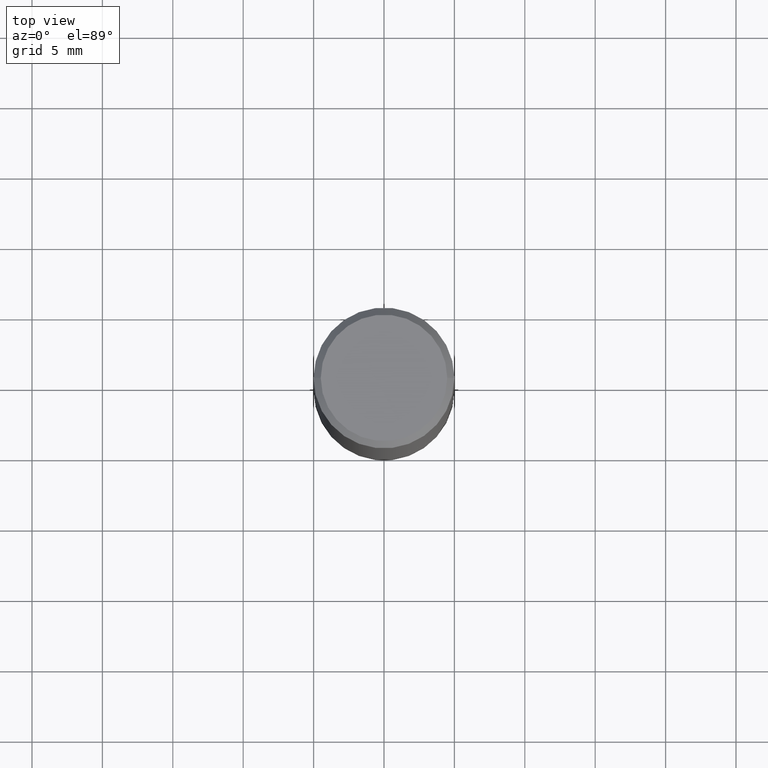
[diagram: clean part render]
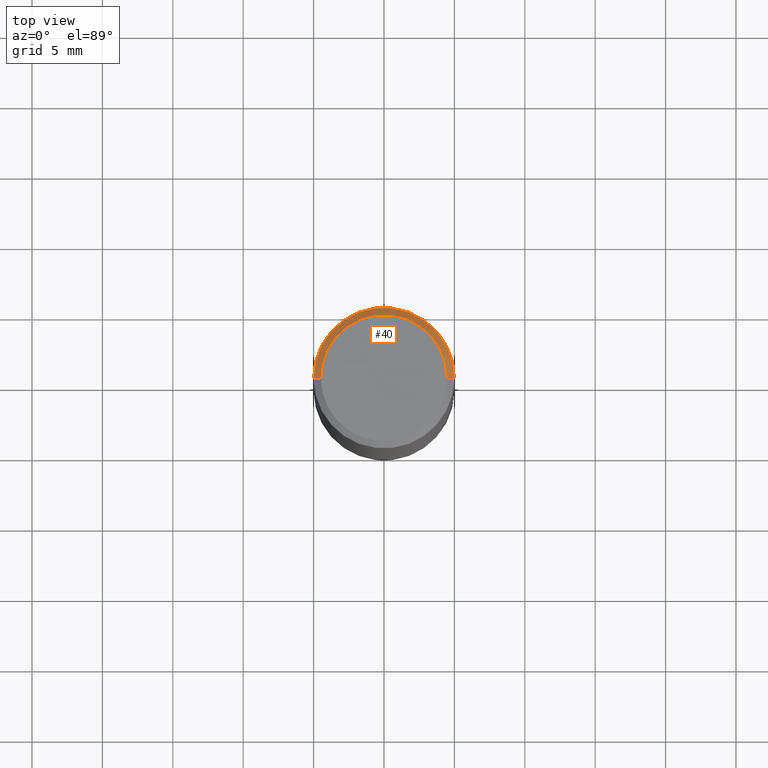
[diagram: same view with one face highlighted and labeled with its STEP entity id]
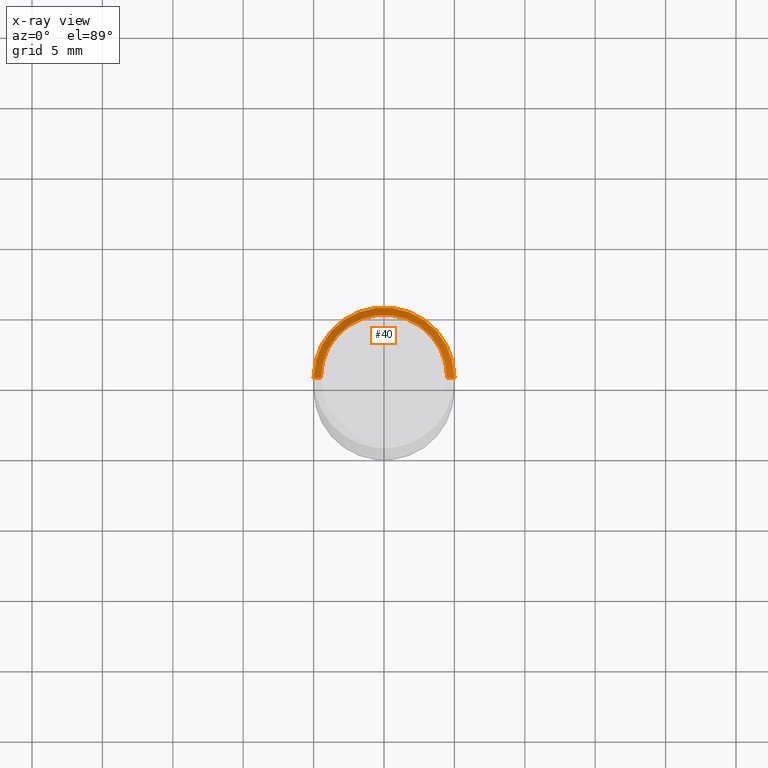
[diagram: x-ray of the same camera — body ghosted, the highlighted face saturated]
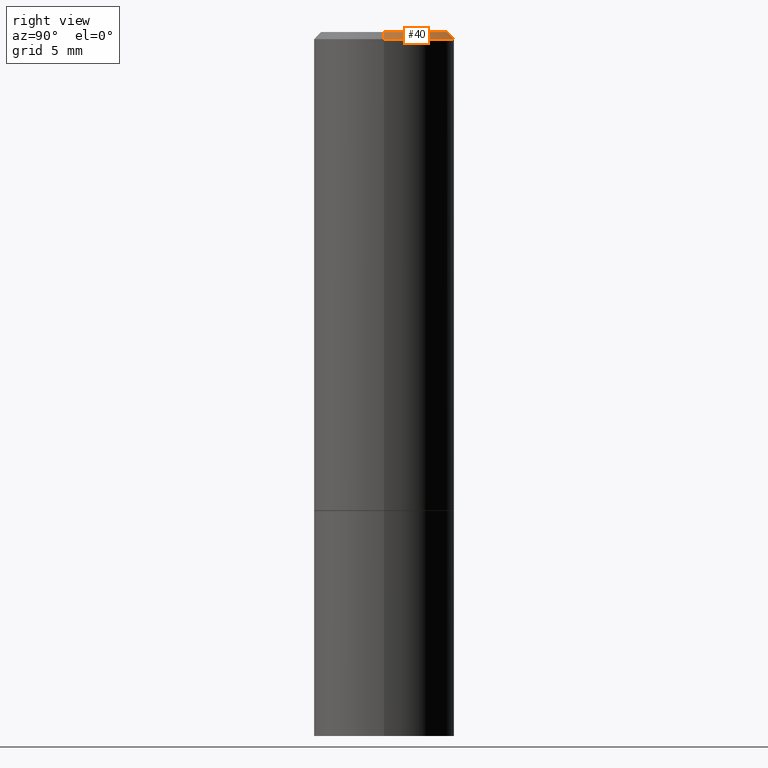
[diagram: same view with one face highlighted and labeled with its STEP entity id]
A machine part, top view. The second image highlights one B-rep face of the part: STEP entity #40.
The next image is the same camera in x-ray: the body ghosted, the highlighted face saturated — about 0% of this face is hidden behind the body in this view.
A second angle (right view) of the same face is appended — the face is thin or edge-on in the first view.
In plain terms, the highlighted conical surface has half-angle 45 deg.
Its self-contained STEP definition (entity closure, byte-faithful):
#7 = CARTESIAN_POINT ( 'NONE',  ( 0.1768499999999998407, -1.316798864272041155E-15, 8.922390245354091239E-30 ) ) ;
#9 = CIRCLE ( 'NONE', #241, 0.1968499999999998307 ) ;
#12 = CARTESIAN_POINT ( 'NONE',  ( 4.890937612370284544E-31, -6.982962677686307633E-17, -0.02000000000000004552 ) ) ;
#20 = EDGE_CURVE ( 'NONE', #359, #111, #204, .T. ) ;
#25 = ORIENTED_EDGE ( 'NONE', *, *, #51, .T. ) ;
#32 = ORIENTED_EDGE ( 'NONE', *, *, #91, .T. ) ;
#36 = AXIS2_PLACEMENT_3D ( 'NONE', #59, #296, #205 ) ;
#40 = ADVANCED_FACE ( 'NONE', ( #170 ), #227, .T. ) ;
#45 = VECTOR ( 'NONE', #139, 39.37007874015748143 ) ;
#51 = EDGE_CURVE ( 'NONE', #86, #305, #287, .T. ) ;
#53 = CARTESIAN_POINT ( 'NONE',  ( 0.1968499999999998307, -1.420318657638187938E-15, -0.02000000000000004552 ) ) ;
#59 = CARTESIAN_POINT ( 'NONE',  ( 0.000000000000000000, 0.000000000000000000, 0.000000000000000000 ) ) ;
#63 = AXIS2_PLACEMENT_3D ( 'NONE', #168, #310, #258 ) ;
#83 = DIRECTION ( 'NONE',  ( -0.7071067811865465735, 2.468850131082246805E-15, -0.7071067811865484609 ) ) ;
#86 = VERTEX_POINT ( 'NONE', #7 ) ;
#89 = CARTESIAN_POINT ( 'NONE',  ( 0.1968499999999998307, -1.420318657638187938E-15, -0.02000000000000004552 ) ) ;
#91 = EDGE_CURVE ( 'NONE', #305, #111, #9, .T. ) ;
#99 = EDGE_CURVE ( 'NONE', #86, #359, #131, .T. ) ;
#102 = EDGE_LOOP ( 'NONE', ( #345, #25, #32, #181 ) ) ;
#111 = VERTEX_POINT ( 'NONE', #316 ) ;
#119 = CARTESIAN_POINT ( 'NONE',  ( -0.1768499999999998407, 1.269851762937246464E-15, -8.758475317130876682E-30 ) ) ;
#131 = CIRCLE ( 'NONE', #36, 0.1768499999999998407 ) ;
#139 = DIRECTION ( 'NONE',  ( 0.7071067811865465735, -7.319954787623252890E-15, -0.7071067811865484609 ) ) ;
#168 = CARTESIAN_POINT ( 'NONE',  ( 4.890937612370284544E-31, -6.982962677686307633E-17, -0.02000000000000004552 ) ) ;
#170 = FACE_OUTER_BOUND ( 'NONE', #102, .T. ) ;
#177 = DIRECTION ( 'NONE',  ( -2.445468806185136597E-29, 3.491481338843145583E-15, 1.000000000000000000 ) ) ;
#181 = ORIENTED_EDGE ( 'NONE', *, *, #20, .F. ) ;
#199 = CARTESIAN_POINT ( 'NONE',  ( -0.1968499999999998307, 1.304766576325677324E-15, -0.02000000000000004552 ) ) ;
#204 = LINE ( 'NONE', #199, #209 ) ;
#205 = DIRECTION ( 'NONE',  ( 1.000000000000000000, -6.982962677686266711E-15, 4.876176775795936353E-29 ) ) ;
#209 = VECTOR ( 'NONE', #83, 39.37007874015748143 ) ;
#227 = CONICAL_SURFACE ( 'NONE', #63, 0.1968499999999998307, 0.7853981633974469467 ) ;
#241 = AXIS2_PLACEMENT_3D ( 'NONE', #12, #177, #290 ) ;
#258 = DIRECTION ( 'NONE',  ( -1.000000000000000000, 6.982962677686266711E-15, 0.000000000000000000 ) ) ;
#287 = LINE ( 'NONE', #53, #45 ) ;
#290 = DIRECTION ( 'NONE',  ( 1.000000000000000000, -6.982962677686266711E-15, 0.000000000000000000 ) ) ;
#296 = DIRECTION ( 'NONE',  ( -2.445468806185136597E-29, 3.491481338843145583E-15, 1.000000000000000000 ) ) ;
#305 = VERTEX_POINT ( 'NONE', #89 ) ;
#310 = DIRECTION ( 'NONE',  ( 2.445468806185136597E-29, -3.491481338843145583E-15, -1.000000000000000000 ) ) ;
#316 = CARTESIAN_POINT ( 'NONE',  ( -0.1968499999999998307, 1.304766576325677324E-15, -0.02000000000000004552 ) ) ;
#345 = ORIENTED_EDGE ( 'NONE', *, *, #99, .F. ) ;
#359 = VERTEX_POINT ( 'NONE', #119 ) ;